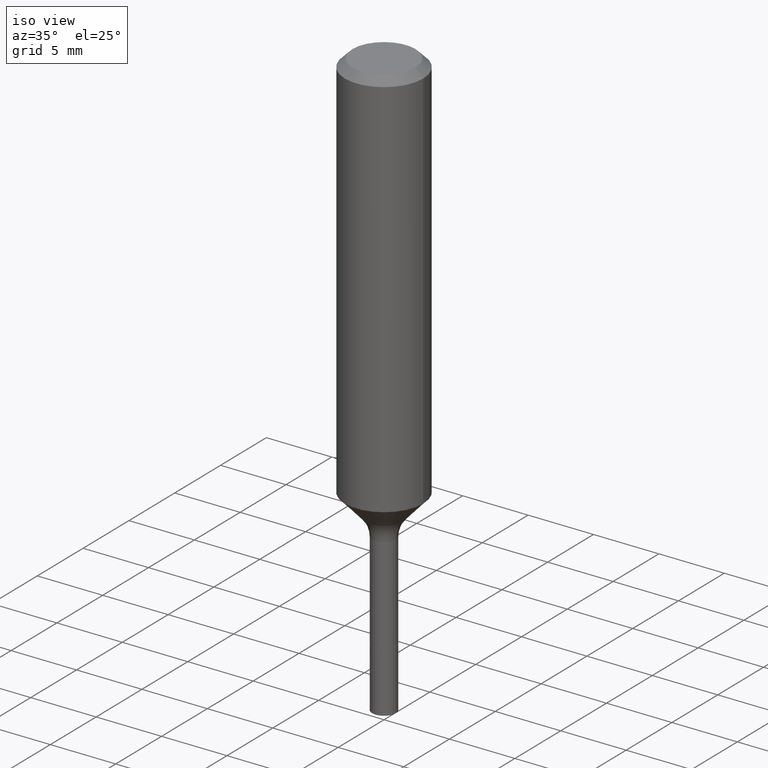
[diagram: clean part render]
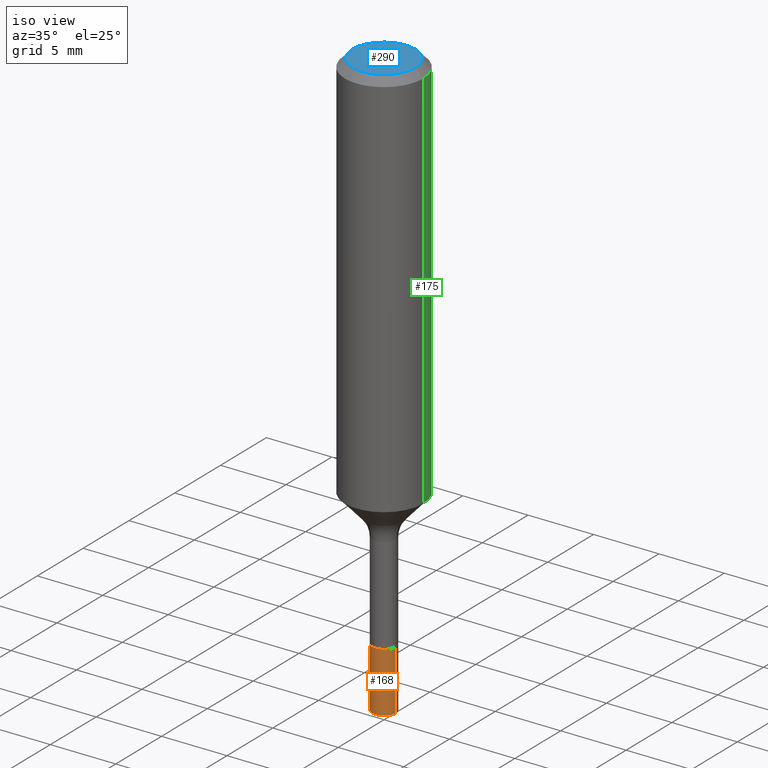
[diagram: same view with three faces highlighted in distinct colors, each labeled with its STEP entity id]
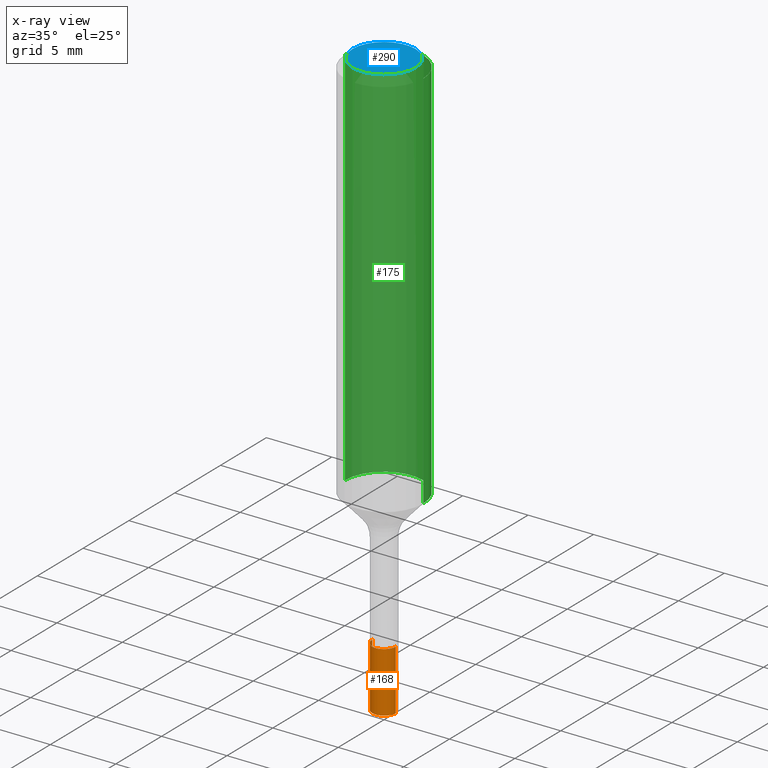
[diagram: x-ray of the same camera — body ghosted, the three highlighted faces saturated]
A machine part, iso view with three faces highlighted in distinct colors.
The next image is the same camera in x-ray (body ghosted, the three faces saturated) — at least one of them is partly hidden behind the body in this view.
Their STEP definitions:

[orange] entity #168 — the highlighted cylindrical surface (edge-blend (fillet) strip) has radius 0.9004 mm, axis along (-0, 0, 1).
#6 = EDGE_CURVE ( 'NONE', #144, #515, #182, .T. ) ;
#21 = CARTESIAN_POINT ( 'NONE',  ( -0.03545000000000005091, -5.302011965870836161E-15, -1.590700000000000003 ) ) ;
#22 = CYLINDRICAL_SURFACE ( 'NONE', #333, 0.03545000000000005091 ) ;
#29 = CARTESIAN_POINT ( 'NONE',  ( 4.332637083918206427E-29, -6.185857488028401081E-15, -1.771700000000000053 ) ) ;
#42 = CARTESIAN_POINT ( 'NONE',  ( 0.03545000000000010643, -6.433403514952379754E-15, -1.771700000000000053 ) ) ;
#50 = CARTESIAN_POINT ( 'NONE',  ( 0.03545000000000000234, -5.801445392621770218E-15, -1.590700000000000003 ) ) ;
#61 = EDGE_CURVE ( 'NONE', #306, #313, #314, .T. ) ;
#112 = ORIENTED_EDGE ( 'NONE', *, *, #514, .T. ) ;
#133 = DIRECTION ( 'NONE',  ( 1.000000000000000000, -6.982962677686254089E-15, 0.000000000000000000 ) ) ;
#144 = VERTEX_POINT ( 'NONE', #418 ) ;
#151 = AXIS2_PLACEMENT_3D ( 'NONE', #29, #517, #277 ) ;
#168 = ADVANCED_FACE ( 'NONE', ( #366 ), #22, .T. ) ;
#182 = CIRCLE ( 'NONE', #151, 0.03545000000000010643 ) ;
#219 = DIRECTION ( 'NONE',  ( -2.445468806185136877E-29, 3.491481338843145188E-15, 1.000000000000000000 ) ) ;
#242 = CARTESIAN_POINT ( 'NONE',  ( 3.890007229998696371E-29, -5.553899365697792335E-15, -1.590700000000000003 ) ) ;
#260 = CARTESIAN_POINT ( 'NONE',  ( 0.03545000000000005091, -5.801445392621771007E-15, -1.590700000000000003 ) ) ;
#263 = DIRECTION ( 'NONE',  ( -2.445468806185136877E-29, 3.491481338843145188E-15, 1.000000000000000000 ) ) ;
#277 = DIRECTION ( 'NONE',  ( 1.000000000000000000, -6.982962677686261977E-15, 0.000000000000000000 ) ) ;
#285 = DIRECTION ( 'NONE',  ( -2.445468806185136597E-29, 3.491481338843145583E-15, 1.000000000000000000 ) ) ;
#303 = LINE ( 'NONE', #260, #513 ) ;
#306 = VERTEX_POINT ( 'NONE', #415 ) ;
#313 = VERTEX_POINT ( 'NONE', #50 ) ;
#314 = CIRCLE ( 'NONE', #448, 0.03545000000000000234 ) ;
#329 = ORIENTED_EDGE ( 'NONE', *, *, #6, .T. ) ;
#331 = CARTESIAN_POINT ( 'NONE',  ( 3.890007229998696371E-29, -5.553899365697792335E-15, -1.590700000000000003 ) ) ;
#333 = AXIS2_PLACEMENT_3D ( 'NONE', #331, #285, #447 ) ;
#340 = DIRECTION ( 'NONE',  ( -2.445468806185136597E-29, 3.491481338843145583E-15, 1.000000000000000000 ) ) ;
#366 = FACE_OUTER_BOUND ( 'NONE', #420, .T. ) ;
#379 = VECTOR ( 'NONE', #219, 39.37007874015748143 ) ;
#389 = ORIENTED_EDGE ( 'NONE', *, *, #61, .F. ) ;
#415 = CARTESIAN_POINT ( 'NONE',  ( -0.03545000000000000234, -5.617991027036140929E-15, -1.590700000000000003 ) ) ;
#418 = CARTESIAN_POINT ( 'NONE',  ( -0.03545000000000010643, -5.617991027036140140E-15, -1.771700000000000053 ) ) ;
#420 = EDGE_LOOP ( 'NONE', ( #482, #329, #112, #389 ) ) ;
#447 = DIRECTION ( 'NONE',  ( 1.000000000000000000, -6.982962677686273021E-15, 0.000000000000000000 ) ) ;
#448 = AXIS2_PLACEMENT_3D ( 'NONE', #242, #340, #133 ) ;
#482 = ORIENTED_EDGE ( 'NONE', *, *, #488, .F. ) ;
#488 = EDGE_CURVE ( 'NONE', #144, #306, #510, .T. ) ;
#510 = LINE ( 'NONE', #21, #379 ) ;
#513 = VECTOR ( 'NONE', #263, 39.37007874015748143 ) ;
#514 = EDGE_CURVE ( 'NONE', #515, #313, #303, .T. ) ;
#515 = VERTEX_POINT ( 'NONE', #42 ) ;
#517 = DIRECTION ( 'NONE',  ( -2.445468806185136597E-29, 3.491481338843145583E-15, 1.000000000000000000 ) ) ;

[blue] entity #290 — the highlighted planar face has unit normal (0, -0, -1).
#16 = EDGE_CURVE ( 'NONE', #393, #55, #269, .T. ) ;
#55 = VERTEX_POINT ( 'NONE', #422 ) ;
#97 = CARTESIAN_POINT ( 'NONE',  ( 7.545787641473140628E-46, -1.077338491108201769E-31, -3.085620075131671975E-17 ) ) ;
#103 = CARTESIAN_POINT ( 'NONE',  ( 0.09447999999999998066, -7.704367267948738690E-16, -3.085620075131172158E-17 ) ) ;
#137 = EDGE_CURVE ( 'NONE', #55, #393, #442, .T. ) ;
#158 = DIRECTION ( 'NONE',  ( -2.445468806185136597E-29, 3.491481338843145583E-15, 1.000000000000000000 ) ) ;
#169 = CARTESIAN_POINT ( 'NONE',  ( 3.772893820736570314E-46, -5.386692455541008845E-32, -1.542810037565835988E-17 ) ) ;
#220 = DIRECTION ( 'NONE',  ( 1.000000000000000000, -6.982962677686267499E-15, 4.875432709231658792E-29 ) ) ;
#235 = DIRECTION ( 'NONE',  ( 1.000000000000000000, -6.982962677686267499E-15, 4.875432709231658792E-29 ) ) ;
#237 = EDGE_LOOP ( 'NONE', ( #350, #262 ) ) ;
#262 = ORIENTED_EDGE ( 'NONE', *, *, #16, .T. ) ;
#269 = CIRCLE ( 'NONE', #465, 0.09447999999999998066 ) ;
#290 = ADVANCED_FACE ( 'NONE', ( #453 ), #370, .F. ) ;
#325 = AXIS2_PLACEMENT_3D ( 'NONE', #169, #417, #374 ) ;
#337 = DIRECTION ( 'NONE',  ( -2.445468806185136597E-29, 3.491481338843145583E-15, 1.000000000000000000 ) ) ;
#350 = ORIENTED_EDGE ( 'NONE', *, *, #137, .T. ) ;
#369 = AXIS2_PLACEMENT_3D ( 'NONE', #97, #337, #220 ) ;
#370 = PLANE ( 'NONE',  #325 ) ;
#374 = DIRECTION ( 'NONE',  ( -1.000000000000000000, 6.982962677686265922E-15, -4.876176775795935793E-29 ) ) ;
#393 = VERTEX_POINT ( 'NONE', #103 ) ;
#417 = DIRECTION ( 'NONE',  ( 2.438088387897960049E-29, -3.491481338843145188E-15, -1.000000000000000000 ) ) ;
#422 = CARTESIAN_POINT ( 'NONE',  ( -0.09447999999999998066, 7.009847083995354710E-16, -3.085620075132147757E-17 ) ) ;
#442 = CIRCLE ( 'NONE', #369, 0.09447999999999998066 ) ;
#453 = FACE_OUTER_BOUND ( 'NONE', #237, .T. ) ;
#465 = AXIS2_PLACEMENT_3D ( 'NONE', #512, #158, #235 ) ;
#512 = CARTESIAN_POINT ( 'NONE',  ( 7.545787641473140628E-46, -1.077338491108201769E-31, -3.085620075131671975E-17 ) ) ;

[green] entity #175 — the highlighted cylindrical surface (partial cylindrical patch) has radius 2.9997 mm, axis along (-0, 0, 1).
#12 = DIRECTION ( 'NONE',  ( 1.000000000000000000, -6.982962677686266711E-15, 0.000000000000000000 ) ) ;
#17 = ORIENTED_EDGE ( 'NONE', *, *, #87, .F. ) ;
#36 = VERTEX_POINT ( 'NONE', #212 ) ;
#48 = CIRCLE ( 'NONE', #483, 0.1181000000000001354 ) ;
#52 = DIRECTION ( 'NONE',  ( -2.445468806185136597E-29, 3.491481338843145583E-15, 1.000000000000000000 ) ) ;
#65 = DIRECTION ( 'NONE',  ( -2.445468806185136597E-29, 3.491481338843145583E-15, 1.000000000000000000 ) ) ;
#83 = FACE_OUTER_BOUND ( 'NONE', #279, .T. ) ;
#87 = EDGE_CURVE ( 'NONE', #36, #387, #301, .T. ) ;
#104 = ORIENTED_EDGE ( 'NONE', *, *, #326, .F. ) ;
#109 = ORIENTED_EDGE ( 'NONE', *, *, #187, .T. ) ;
#143 = AXIS2_PLACEMENT_3D ( 'NONE', #457, #52, #12 ) ;
#163 = VERTEX_POINT ( 'NONE', #386 ) ;
#175 = ADVANCED_FACE ( 'NONE', ( #83 ), #489, .T. ) ;
#176 = ORIENTED_EDGE ( 'NONE', *, *, #479, .T. ) ;
#186 = CARTESIAN_POINT ( 'NONE',  ( -0.1181000000000001354, -3.279246400376729248E-15, -1.179555888067264524 ) ) ;
#187 = EDGE_CURVE ( 'NONE', #36, #462, #48, .T. ) ;
#212 = CARTESIAN_POINT ( 'NONE',  ( 0.1181000000000001354, -4.943085263544158468E-15, -1.179555888067264524 ) ) ;
#241 = VECTOR ( 'NONE', #352, 39.37007874015748143 ) ;
#253 = CARTESIAN_POINT ( 'NONE',  ( 2.884567129420502109E-29, -4.118397371309408628E-15, -1.179555888067264524 ) ) ;
#279 = EDGE_LOOP ( 'NONE', ( #109, #176, #104, #17 ) ) ;
#297 = DIRECTION ( 'NONE',  ( -2.445468806185136877E-29, 3.491481338843145188E-15, 1.000000000000000000 ) ) ;
#298 = DIRECTION ( 'NONE',  ( 1.000000000000000000, -6.982962677686265133E-15, 0.000000000000000000 ) ) ;
#301 = LINE ( 'NONE', #461, #368 ) ;
#326 = EDGE_CURVE ( 'NONE', #387, #163, #354, .T. ) ;
#352 = DIRECTION ( 'NONE',  ( -2.445468806185136877E-29, 3.491481338843145188E-15, 1.000000000000000000 ) ) ;
#354 = CIRCLE ( 'NONE', #143, 0.1180999999999999966 ) ;
#368 = VECTOR ( 'NONE', #297, 39.37007874015748143 ) ;
#386 = CARTESIAN_POINT ( 'NONE',  ( -0.1180999999999999966, -1.261282109333762859E-15, -0.02362000000000013741 ) ) ;
#387 = VERTEX_POINT ( 'NONE', #425 ) ;
#394 = CARTESIAN_POINT ( 'NONE',  ( -0.1181000000000000660, 8.391509709326787887E-16, -5.809262341591047287E-30 ) ) ;
#408 = CARTESIAN_POINT ( 'NONE',  ( 0.000000000000000000, 0.000000000000000000, 0.000000000000000000 ) ) ;
#419 = DIRECTION ( 'NONE',  ( -2.445468806185136597E-29, 3.491481338843145583E-15, 1.000000000000000000 ) ) ;
#425 = CARTESIAN_POINT ( 'NONE',  ( 0.1180999999999999966, -9.071566814582237199E-16, -0.02362000000000013741 ) ) ;
#434 = LINE ( 'NONE', #394, #241 ) ;
#449 = AXIS2_PLACEMENT_3D ( 'NONE', #408, #65, #470 ) ;
#457 = CARTESIAN_POINT ( 'NONE',  ( 5.776197320209326656E-31, -8.246878922347558061E-17, -0.02362000000000013741 ) ) ;
#461 = CARTESIAN_POINT ( 'NONE',  ( 0.1181000000000000660, -8.246878922347485584E-16, 5.758764772215003944E-30 ) ) ;
#462 = VERTEX_POINT ( 'NONE', #186 ) ;
#470 = DIRECTION ( 'NONE',  ( 1.000000000000000000, -6.982962677686266711E-15, 4.876176775795936353E-29 ) ) ;
#479 = EDGE_CURVE ( 'NONE', #462, #163, #434, .T. ) ;
#483 = AXIS2_PLACEMENT_3D ( 'NONE', #253, #419, #298 ) ;
#489 = CYLINDRICAL_SURFACE ( 'NONE', #449, 0.1181000000000000660 ) ;